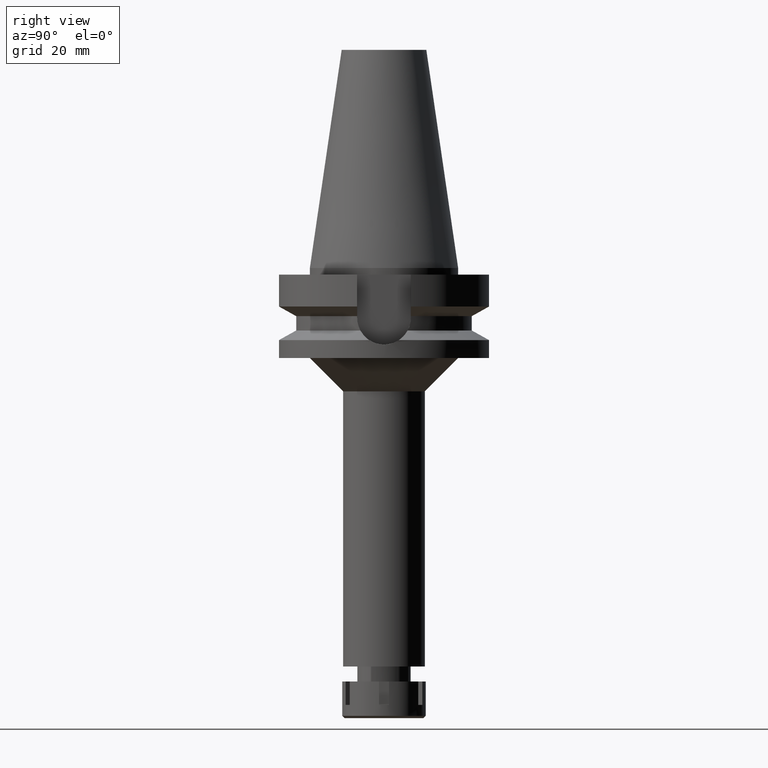
[diagram: clean part render]
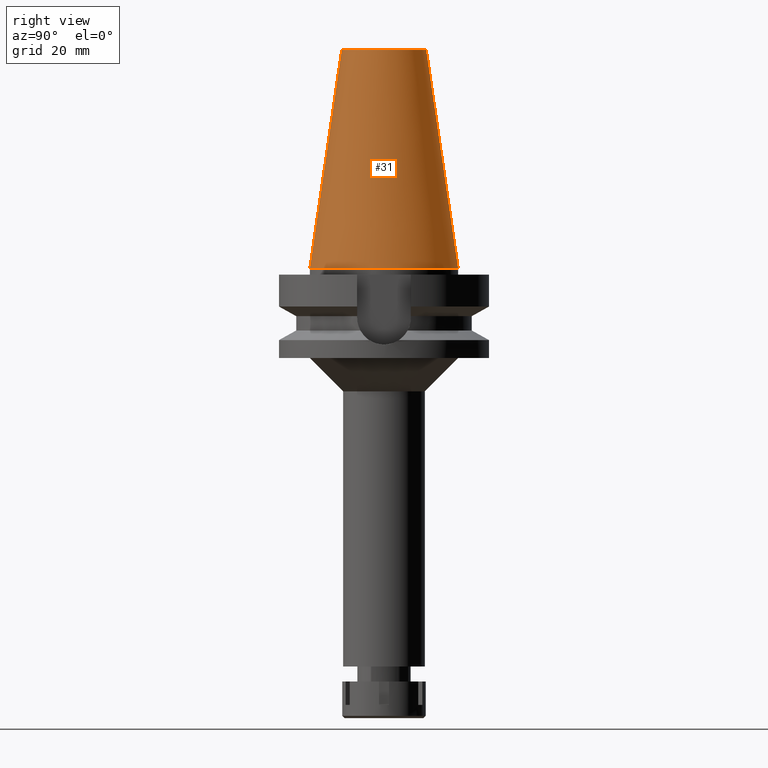
[diagram: same view with one face highlighted and labeled with its STEP entity id]
A machine part, right view. The second image highlights one B-rep face of the part: STEP entity #31.
In plain terms, the highlighted conical surface has half-angle 8.297 deg.
Its self-contained STEP definition (entity closure, byte-faithful):
#11 = VERTEX_POINT ( 'NONE', #1770 ) ;
#31 = ADVANCED_FACE ( 'NONE', ( #653 ), #3046, .T. ) ;
#40 = CARTESIAN_POINT ( 'NONE',  ( 0.0000000000000000000, 1.625106302469000024E-14, 32.70000000000000284 ) ) ;
#88 = DIRECTION ( 'NONE',  ( 0.0000000000000000000, 0.0000000000000000000, -1.000000000000000000 ) ) ;
#331 = LINE ( 'NONE', #2014, #2810 ) ;
#533 = EDGE_LOOP ( 'NONE', ( #1908, #1211, #1814, #3323 ) ) ;
#653 = FACE_OUTER_BOUND ( 'NONE', #533, .T. ) ;
#691 = AXIS2_PLACEMENT_3D ( 'NONE', #40, #88, #2560 ) ;
#985 = CARTESIAN_POINT ( 'NONE',  ( 0.0000000000000000000, -22.22500000000000142, 2.842170943039999687E-14 ) ) ;
#1091 = LINE ( 'NONE', #2687, #3113 ) ;
#1104 = CIRCLE ( 'NONE', #3449, 22.22500000000000142 ) ;
#1211 = ORIENTED_EDGE ( 'NONE', *, *, #2660, .T. ) ;
#1241 = EDGE_CURVE ( 'NONE', #11, #1905, #1091, .T. ) ;
#1299 = CARTESIAN_POINT ( 'NONE',  ( 0.0000000000000000000, 1.625106302469000024E-14, 65.40000000000000568 ) ) ;
#1395 = AXIS2_PLACEMENT_3D ( 'NONE', #1299, #2205, #1890 ) ;
#1623 = EDGE_CURVE ( 'NONE', #1905, #3226, #1104, .T. ) ;
#1770 = CARTESIAN_POINT ( 'NONE',  ( 0.0000000000000000000, 12.68766899429999917, 65.40000000000000568 ) ) ;
#1814 = ORIENTED_EDGE ( 'NONE', *, *, #1623, .F. ) ;
#1837 = EDGE_CURVE ( 'NONE', #11, #2787, #2870, .T. ) ;
#1890 = DIRECTION ( 'NONE',  ( 0.0000000000000000000, 1.000000000000000000, 0.0000000000000000000 ) ) ;
#1905 = VERTEX_POINT ( 'NONE', #2478 ) ;
#1908 = ORIENTED_EDGE ( 'NONE', *, *, #1837, .T. ) ;
#2014 = CARTESIAN_POINT ( 'NONE',  ( 0.0000000000000000000, -12.68766899429999917, 65.40000000000000568 ) ) ;
#2205 = DIRECTION ( 'NONE',  ( 0.0000000000000000000, 0.0000000000000000000, -1.000000000000000000 ) ) ;
#2478 = CARTESIAN_POINT ( 'NONE',  ( 0.0000000000000000000, 22.22500000000000142, 7.105427357600999334E-14 ) ) ;
#2560 = DIRECTION ( 'NONE',  ( 0.0000000000000000000, -1.000000000000000000, 0.0000000000000000000 ) ) ;
#2607 = DIRECTION ( 'NONE',  ( 0.0000000000000000000, 1.000000000000000000, 0.0000000000000000000 ) ) ;
#2660 = EDGE_CURVE ( 'NONE', #2787, #3226, #331, .T. ) ;
#2687 = CARTESIAN_POINT ( 'NONE',  ( 0.0000000000000000000, 12.68766899429999917, 65.40000000000000568 ) ) ;
#2787 = VERTEX_POINT ( 'NONE', #2942 ) ;
#2810 = VECTOR ( 'NONE', #3128, 1000.000000000000114 ) ;
#2870 = CIRCLE ( 'NONE', #1395, 12.68766899429999917 ) ;
#2909 = CARTESIAN_POINT ( 'NONE',  ( 0.0000000000000000000, 1.625106302469000024E-14, 2.842170943039999687E-14 ) ) ;
#2942 = CARTESIAN_POINT ( 'NONE',  ( 0.0000000000000000000, -12.68766899429999917, 65.40000000000000568 ) ) ;
#3046 = CONICAL_SURFACE ( 'NONE', #691, 17.45633449714999941, 0.1448099680379422438 ) ;
#3113 = VECTOR ( 'NONE', #3239, 1000.000000000000114 ) ;
#3128 = DIRECTION ( 'NONE',  ( 0.0000000000000000000, -0.1443043893539925626, -0.9895333461855498891 ) ) ;
#3226 = VERTEX_POINT ( 'NONE', #985 ) ;
#3239 = DIRECTION ( 'NONE',  ( 0.0000000000000000000, 0.1443043893539925626, -0.9895333461855498891 ) ) ;
#3323 = ORIENTED_EDGE ( 'NONE', *, *, #1241, .F. ) ;
#3449 = AXIS2_PLACEMENT_3D ( 'NONE', #2909, #3541, #2607 ) ;
#3541 = DIRECTION ( 'NONE',  ( 0.0000000000000000000, 0.0000000000000000000, -1.000000000000000000 ) ) ;